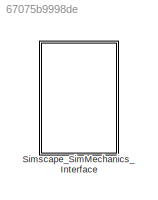
MODEL slx_67075b9998de
KIND library
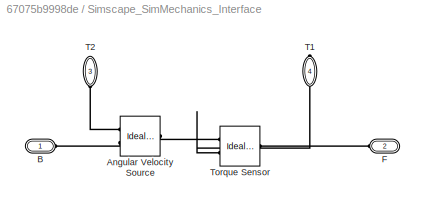
BLOCK [SubSystem] Simscape_SimMechanics_Interface
  Ports = [0, 0, 0, 0, 0, 3, 1]
  RequestExecContextInheritance = off
BLOCK [Reference] Simscape_SimMechanics_Interface/Angular Velocity Source  REF=fl_lib/Mechanical/Mechanical Sources/Ideal Angular
Velocity Source
  ClassName = source_ang_velocity
  ComponentPath = foundation.mechanical.sources.angular_velocity
  ComponentVariantNames = angular_velocity
  ComponentVariants = foundation.mechanical.sources.angular_velocity
  Ports = [0, 0, 0, 0, 0, 1, 2]
  SchemaVersion = 1
  SourceBlock = fl_lib/Mechanical/Mechanical Sources/Ideal Angular\nVelocity Source
  SourceFile = foundation.mechanical.sources.angular_velocity
  SourceType = Ideal Angular\nVelocity Source
BLOCK [PMIOPort] Simscape_SimMechanics_Interface/B
  Port = 1
  Side = Left
BLOCK [PMIOPort] Simscape_SimMechanics_Interface/F
  Port = 2
  Side = Left
BLOCK [PMIOPort] Simscape_SimMechanics_Interface/T1
  Port = 4
  Side = Right
BLOCK [PMIOPort] Simscape_SimMechanics_Interface/T2
  Port = 3
  Side = Left
BLOCK [Reference] Simscape_SimMechanics_Interface/Torque Sensor  REF=fl_lib/Mechanical/Mechanical Sensors/Ideal Torque Sensor
  ClassName = sensor_torque
  ComponentPath = foundation.mechanical.sensors.torque
  ComponentVariantNames = torque
  ComponentVariants = foundation.mechanical.sensors.torque
  Ports = [0, 0, 0, 0, 0, 1, 2]
  SchemaVersion = 1
  SourceBlock = fl_lib/Mechanical/Mechanical Sensors/Ideal Torque Sensor
  SourceFile = foundation.mechanical.sensors.torque
  SourceType = Ideal Torque Sensor
PLINE Simscape_SimMechanics_Interface/Angular Velocity Source:LConn1 -- Simscape_SimMechanics_Interface/Torque Sensor:RConn1
PLINE Simscape_SimMechanics_Interface/Angular Velocity Source:RConn1 -- Simscape_SimMechanics_Interface/T2:RConn1
PLINE Simscape_SimMechanics_Interface/Angular Velocity Source:RConn2 -- Simscape_SimMechanics_Interface/B:RConn1
PLINE Simscape_SimMechanics_Interface/F:RConn1 -- Simscape_SimMechanics_Interface/Torque Sensor:LConn1
PLINE Simscape_SimMechanics_Interface/T1:RConn1 -- Simscape_SimMechanics_Interface/Torque Sensor:RConn2
